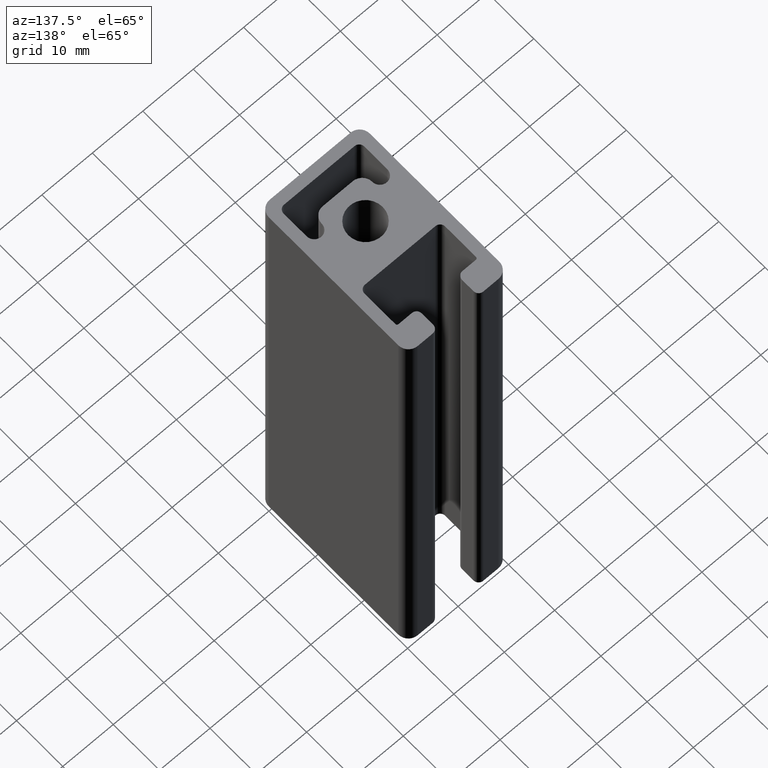
[diagram: clean part render]
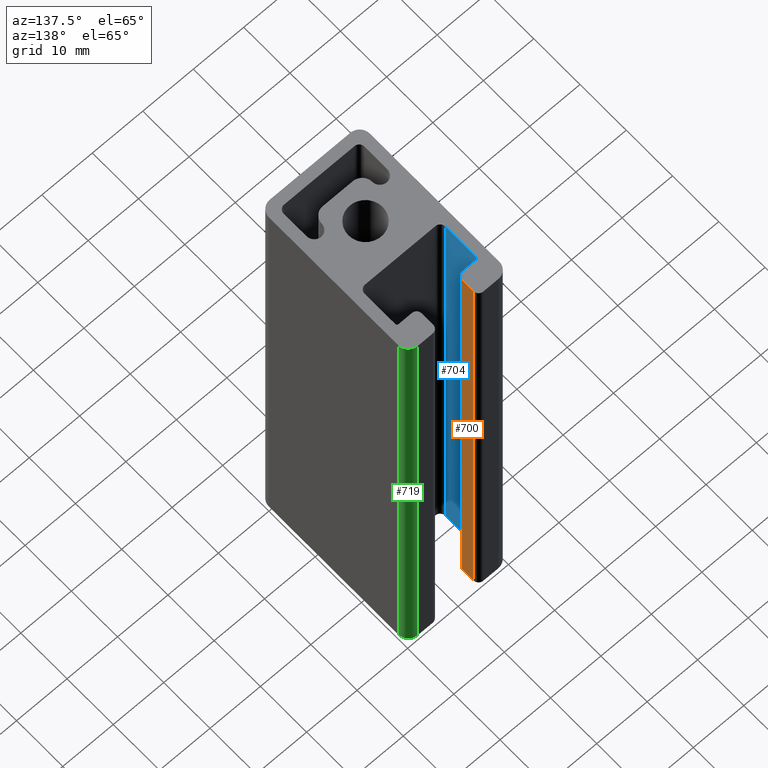
[diagram: same view with three faces highlighted in distinct colors, each labeled with its STEP entity id]
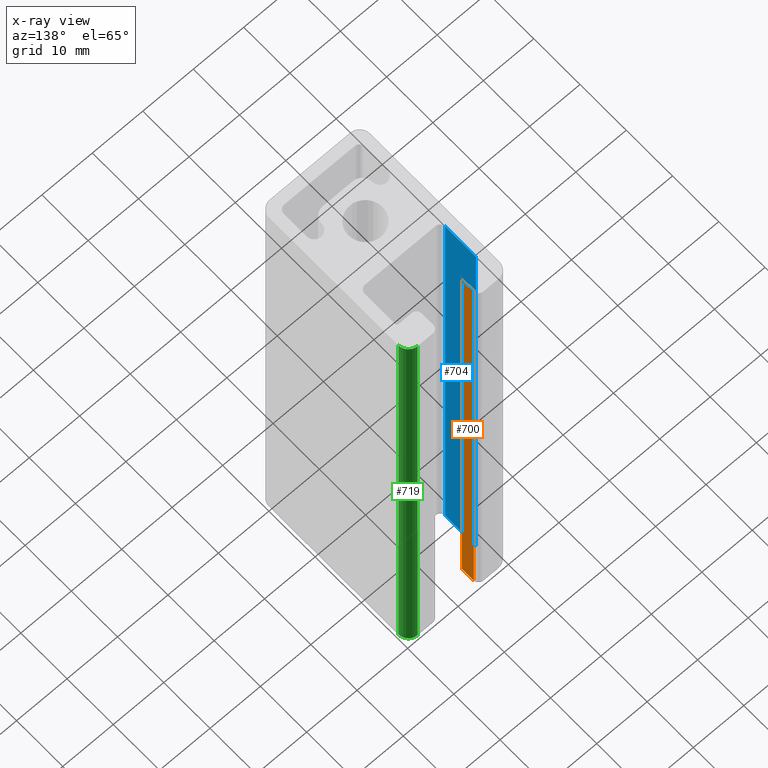
[diagram: x-ray of the same camera — body ghosted, the three highlighted faces saturated]
A machine part, auxiliary view with three faces highlighted in distinct colors.
The next image is the same camera in x-ray (body ghosted, the three faces saturated) — at least one of them is partly hidden behind the body in this view.
Their STEP definitions:

[orange] entity #700 — the highlighted planar face has unit normal (-1, -0, 0).
#33=LINE('',#1091,#99);
#35=LINE('',#1097,#101);
#36=LINE('',#1099,#102);
#37=LINE('',#1100,#103);
#99=VECTOR('',#876,100.);
#101=VECTOR('',#882,2.50000399190596);
#102=VECTOR('',#883,100.);
#103=VECTOR('',#884,2.50000399190596);
#151=PLANE('',#755);
#182=FACE_OUTER_BOUND('',#220,.T.);
#220=EDGE_LOOP('',(#507,#508,#509,#510));
#309=VERTEX_POINT('',#1087);
#311=VERTEX_POINT('',#1090);
#313=VERTEX_POINT('',#1096);
#314=VERTEX_POINT('',#1098);
#390=EDGE_CURVE('',#311,#309,#33,.T.);
#393=EDGE_CURVE('',#313,#309,#35,.T.);
#394=EDGE_CURVE('',#314,#313,#36,.T.);
#395=EDGE_CURVE('',#311,#314,#37,.T.);
#507=ORIENTED_EDGE('',*,*,#393,.F.);
#508=ORIENTED_EDGE('',*,*,#394,.F.);
#509=ORIENTED_EDGE('',*,*,#395,.F.);
#510=ORIENTED_EDGE('',*,*,#390,.T.);
#700=ADVANCED_FACE('',(#182),#151,.F.);
#755=AXIS2_PLACEMENT_3D('',#1095,#880,#881);
#876=DIRECTION('',(0.,0.,1.));
#880=DIRECTION('center_axis',(-1.,-3.10861950522375E-15,0.));
#881=DIRECTION('ref_axis',(3.10862446895044E-15,-1.,0.));
#882=DIRECTION('',(-3.10861950522375E-15,1.,0.));
#883=DIRECTION('',(0.,0.,1.));
#884=DIRECTION('',(3.10861950522375E-15,-1.,0.));
#1087=CARTESIAN_POINT('',(-4.,19.000001995953,100.));
#1090=CARTESIAN_POINT('',(-4.,19.000001995953,0.));
#1091=CARTESIAN_POINT('',(-4.,19.000001995953,0.));
#1095=CARTESIAN_POINT('Origin',(-4.,19.000001995953,0.));
#1096=CARTESIAN_POINT('',(-3.99999999999999,16.499998004047,100.));
#1097=CARTESIAN_POINT('',(-3.99999999999998,11.5000009979765,100.));
#1098=CARTESIAN_POINT('',(-3.99999999999999,16.499998004047,0.));
#1099=CARTESIAN_POINT('',(-3.99999999999999,16.499998004047,0.));
#1100=CARTESIAN_POINT('',(-3.99999999999998,11.5000009979765,0.));

[blue] entity #704 — the highlighted planar face has unit normal (-1, 0, 0).
#42=LINE('',#1117,#108);
#43=LINE('',#1121,#109);
#44=LINE('',#1123,#110);
#45=LINE('',#1124,#111);
#108=VECTOR('',#901,100.);
#109=VECTOR('',#906,6.70000144973492);
#110=VECTOR('',#907,100.);
#111=VECTOR('',#908,6.70000144973492);
#153=PLANE('',#763);
#186=FACE_OUTER_BOUND('',#224,.T.);
#224=EDGE_LOOP('',(#523,#524,#525,#526));
#319=VERTEX_POINT('',#1114);
#320=VERTEX_POINT('',#1116);
#321=VERTEX_POINT('',#1120);
#322=VERTEX_POINT('',#1122);
#403=EDGE_CURVE('',#320,#319,#42,.T.);
#405=EDGE_CURVE('',#321,#319,#43,.T.);
#406=EDGE_CURVE('',#322,#321,#44,.T.);
#407=EDGE_CURVE('',#320,#322,#45,.T.);
#523=ORIENTED_EDGE('',*,*,#405,.F.);
#524=ORIENTED_EDGE('',*,*,#406,.F.);
#525=ORIENTED_EDGE('',*,*,#407,.F.);
#526=ORIENTED_EDGE('',*,*,#403,.T.);
#704=ADVANCED_FACE('',(#186),#153,.F.);
#763=AXIS2_PLACEMENT_3D('',#1119,#904,#905);
#901=DIRECTION('',(0.,0.,1.));
#904=DIRECTION('center_axis',(-1.,3.47980275706518E-15,0.));
#905=DIRECTION('ref_axis',(-3.46389583683049E-15,-1.,0.));
#906=DIRECTION('',(3.47980275706518E-15,1.,0.));
#907=DIRECTION('',(0.,0.,1.));
#908=DIRECTION('',(-3.47980275706518E-15,-1.,0.));
#1114=CARTESIAN_POINT('',(-7.99999999999998,15.1999994537821,100.));
#1116=CARTESIAN_POINT('',(-7.99999999999998,15.1999994537821,0.));
#1117=CARTESIAN_POINT('',(-7.99999999999998,15.1999994537821,0.));
#1119=CARTESIAN_POINT('Origin',(-7.99999999999998,15.1999994537821,0.));
#1120=CARTESIAN_POINT('',(-8.00000000000001,8.49999800404716,100.));
#1121=CARTESIAN_POINT('',(-8.,9.59999972689105,100.));
#1122=CARTESIAN_POINT('',(-8.00000000000001,8.49999800404716,0.));
#1123=CARTESIAN_POINT('',(-8.00000000000001,8.49999800404716,0.));
#1124=CARTESIAN_POINT('',(-8.,9.59999972689105,0.));

[green] entity #719 — the highlighted cylindrical surface (edge-blend (fillet) strip) has radius 2 mm, axis along (0, 0, 1).
#67=LINE('',#1189,#133);
#74=LINE('',#1213,#140);
#133=VECTOR('',#972,100.);
#140=VECTOR('',#997,100.);
#201=FACE_OUTER_BOUND('',#239,.T.);
#239=EDGE_LOOP('',(#583,#584,#585,#586));
#283=CIRCLE('',#793,2.);
#284=CIRCLE('',#794,2.);
#343=VERTEX_POINT('',#1186);
#344=VERTEX_POINT('',#1188);
#351=VERTEX_POINT('',#1210);
#352=VERTEX_POINT('',#1212);
#439=EDGE_CURVE('',#344,#343,#67,.T.);
#450=EDGE_CURVE('',#343,#351,#283,.T.);
#451=EDGE_CURVE('',#352,#351,#74,.T.);
#452=EDGE_CURVE('',#344,#352,#284,.T.);
#583=ORIENTED_EDGE('',*,*,#450,.T.);
#584=ORIENTED_EDGE('',*,*,#451,.F.);
#585=ORIENTED_EDGE('',*,*,#452,.F.);
#586=ORIENTED_EDGE('',*,*,#439,.T.);
#686=CYLINDRICAL_SURFACE('',#792,2.);
#719=ADVANCED_FACE('',(#201),#686,.T.);
#792=AXIS2_PLACEMENT_3D('',#1209,#993,#994);
#793=AXIS2_PLACEMENT_3D('',#1211,#995,#996);
#794=AXIS2_PLACEMENT_3D('',#1214,#998,#999);
#972=DIRECTION('',(0.,0.,1.));
#993=DIRECTION('center_axis',(0.,0.,1.));
#994=DIRECTION('ref_axis',(-1.,-1.11022302462516E-15,0.));
#995=DIRECTION('center_axis',(0.,0.,-1.));
#996=DIRECTION('ref_axis',(-1.,-1.11022302462516E-15,0.));
#997=DIRECTION('',(0.,0.,1.));
#998=DIRECTION('center_axis',(0.,0.,-1.));
#999=DIRECTION('ref_axis',(-1.,-1.11022302462516E-15,0.));
#1186=CARTESIAN_POINT('',(8.,20.,100.));
#1188=CARTESIAN_POINT('',(8.,20.,0.));
#1189=CARTESIAN_POINT('',(8.,20.,0.));
#1209=CARTESIAN_POINT('Origin',(8.,18.,0.));
#1210=CARTESIAN_POINT('',(10.,18.,100.));
#1211=CARTESIAN_POINT('Origin',(8.,18.,100.));
#1212=CARTESIAN_POINT('',(10.,18.,0.));
#1213=CARTESIAN_POINT('',(10.,18.,0.));
#1214=CARTESIAN_POINT('Origin',(8.,18.,0.));